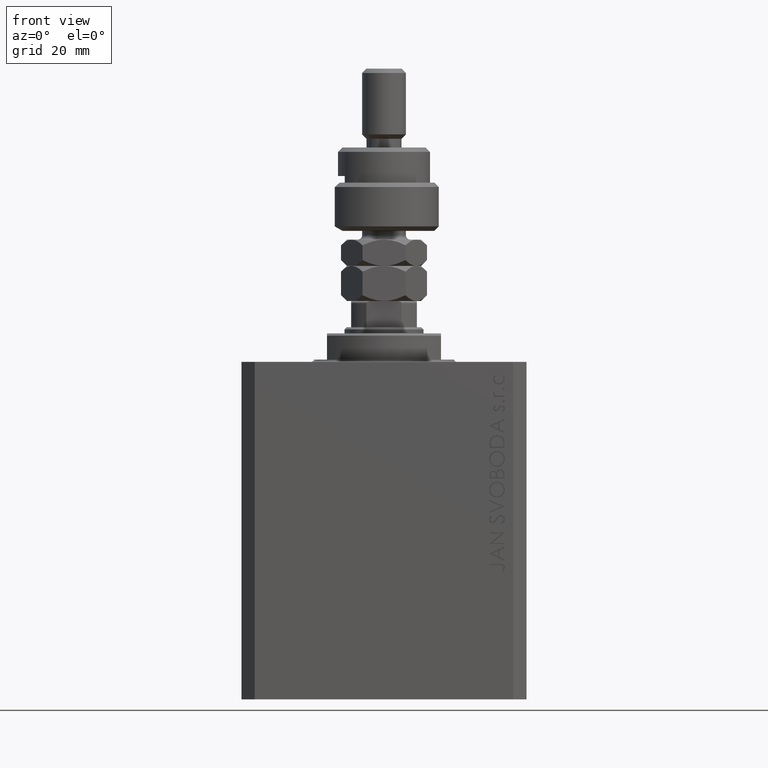
[diagram: clean part render]
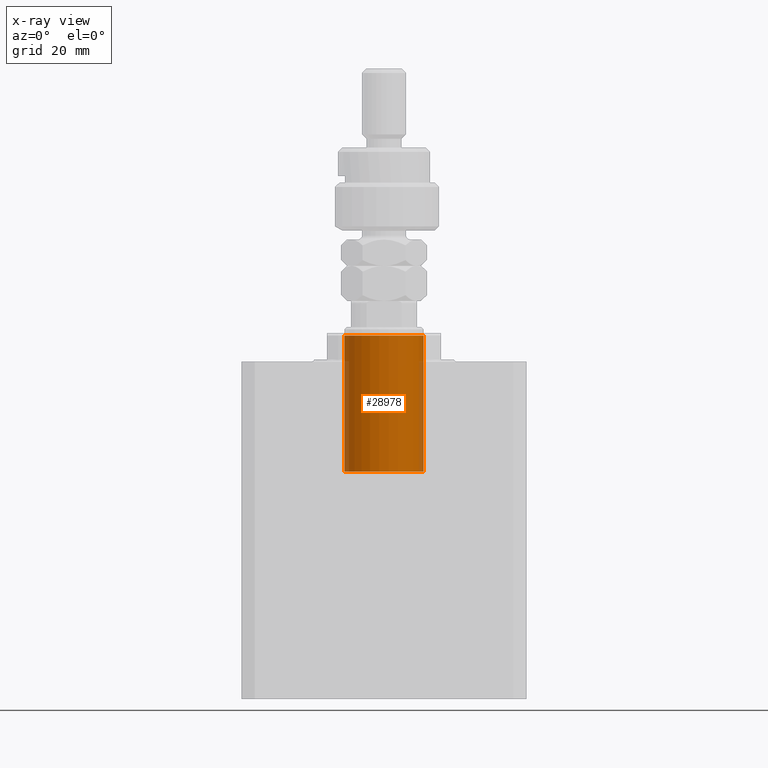
[diagram: x-ray — body ghosted, one internal face saturated and labeled with its STEP entity id]
A machine part, front view, then the same camera in x-ray: the body is ghosted and one INTERNAL B-rep face — a face not visible from any outside direction — is saturated and labeled: STEP entity #28978.
In plain terms, the highlighted cylindrical surface (partial cylindrical patch) has radius 9 mm, axis along (0, -0, 1).
Its self-contained STEP definition (entity closure, byte-faithful):
#1789 = VERTEX_POINT ( 'NONE', #36061 ) ;
#2051 = AXIS2_PLACEMENT_3D ( 'NONE', #11002, #19585, #15545 ) ;
#2266 = EDGE_CURVE ( 'NONE', #41876, #34479, #16421, .T. ) ;
#2531 = DIRECTION ( 'NONE',  ( -0.000000000000000000, -0.000000000000000000, -1.000000000000000000 ) ) ;
#2734 = EDGE_LOOP ( 'NONE', ( #29167, #18581, #27391, #30514 ) ) ;
#10439 = AXIS2_PLACEMENT_3D ( 'NONE', #31096, #45864, #11804 ) ;
#11002 = CARTESIAN_POINT ( 'NONE',  ( 0.000000000000000000, 0.000000000000000000, -6.000000000000001776 ) ) ;
#11804 = DIRECTION ( 'NONE',  ( -1.000000000000000000, 0.000000000000000000, 0.000000000000000000 ) ) ;
#14162 = DIRECTION ( 'NONE',  ( 0.000000000000000000, 0.000000000000000000, -1.000000000000000000 ) ) ;
#14402 = VECTOR ( 'NONE', #37961, 1000.000000000000000 ) ;
#14507 = CARTESIAN_POINT ( 'NONE',  ( -9.000000000000000000, 0.000000000000000000, 25.10000000000000497 ) ) ;
#15545 = DIRECTION ( 'NONE',  ( -1.000000000000000000, 0.000000000000000000, 0.000000000000000000 ) ) ;
#16421 = CIRCLE ( 'NONE', #44019, 9.000000000000000000 ) ;
#18049 = VERTEX_POINT ( 'NONE', #48638 ) ;
#18581 = ORIENTED_EDGE ( 'NONE', *, *, #33570, .T. ) ;
#18983 = EDGE_CURVE ( 'NONE', #18049, #1789, #40209, .T. ) ;
#19585 = DIRECTION ( 'NONE',  ( 0.000000000000000000, 0.000000000000000000, -1.000000000000000000 ) ) ;
#21919 = VECTOR ( 'NONE', #2531, 1000.000000000000000 ) ;
#22943 = EDGE_CURVE ( 'NONE', #34479, #1789, #33391, .T. ) ;
#25678 = CARTESIAN_POINT ( 'NONE',  ( 9.000000000000000000, 1.102182119232617714E-15, 25.10000000000000497 ) ) ;
#27391 = ORIENTED_EDGE ( 'NONE', *, *, #18983, .T. ) ;
#28978 = ADVANCED_FACE ( 'NONE', ( #38216 ), #38473, .F. ) ;
#28991 = CARTESIAN_POINT ( 'NONE',  ( 9.000000000000000000, 1.102182119232617714E-15, 25.10000000000000497 ) ) ;
#29167 = ORIENTED_EDGE ( 'NONE', *, *, #2266, .F. ) ;
#30514 = ORIENTED_EDGE ( 'NONE', *, *, #22943, .F. ) ;
#31096 = CARTESIAN_POINT ( 'NONE',  ( 0.000000000000000000, 0.000000000000000000, 25.10000000000000497 ) ) ;
#33192 = CARTESIAN_POINT ( 'NONE',  ( 0.000000000000000000, 0.000000000000000000, 25.10000000000000497 ) ) ;
#33391 = LINE ( 'NONE', #33890, #14402 ) ;
#33570 = EDGE_CURVE ( 'NONE', #41876, #18049, #50064, .T. ) ;
#33890 = CARTESIAN_POINT ( 'NONE',  ( -9.000000000000000000, 0.000000000000000000, 25.10000000000000497 ) ) ;
#34479 = VERTEX_POINT ( 'NONE', #14507 ) ;
#36061 = CARTESIAN_POINT ( 'NONE',  ( -9.000000000000000000, 0.000000000000000000, -6.000000000000001776 ) ) ;
#37961 = DIRECTION ( 'NONE',  ( -0.000000000000000000, -0.000000000000000000, -1.000000000000000000 ) ) ;
#38216 = FACE_OUTER_BOUND ( 'NONE', #2734, .T. ) ;
#38473 = CYLINDRICAL_SURFACE ( 'NONE', #10439, 9.000000000000000000 ) ;
#40209 = CIRCLE ( 'NONE', #2051, 9.000000000000000000 ) ;
#41876 = VERTEX_POINT ( 'NONE', #28991 ) ;
#44019 = AXIS2_PLACEMENT_3D ( 'NONE', #33192, #14162, #45142 ) ;
#45142 = DIRECTION ( 'NONE',  ( -1.000000000000000000, 0.000000000000000000, 0.000000000000000000 ) ) ;
#45864 = DIRECTION ( 'NONE',  ( -0.000000000000000000, -0.000000000000000000, -1.000000000000000000 ) ) ;
#48638 = CARTESIAN_POINT ( 'NONE',  ( 9.000000000000000000, 1.102182119232617714E-15, -6.000000000000001776 ) ) ;
#50064 = LINE ( 'NONE', #25678, #21919 ) ;